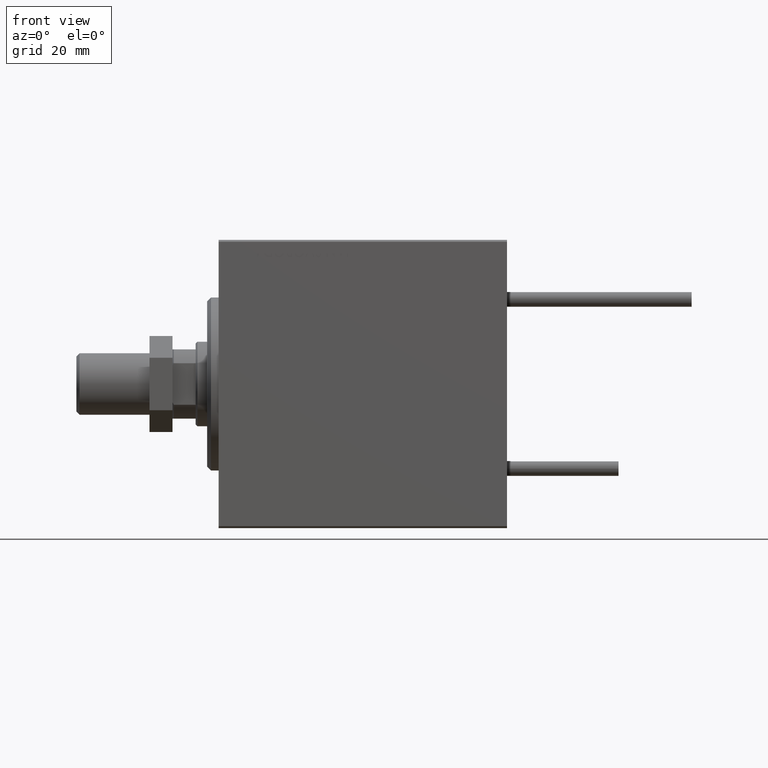
[diagram: clean part render]
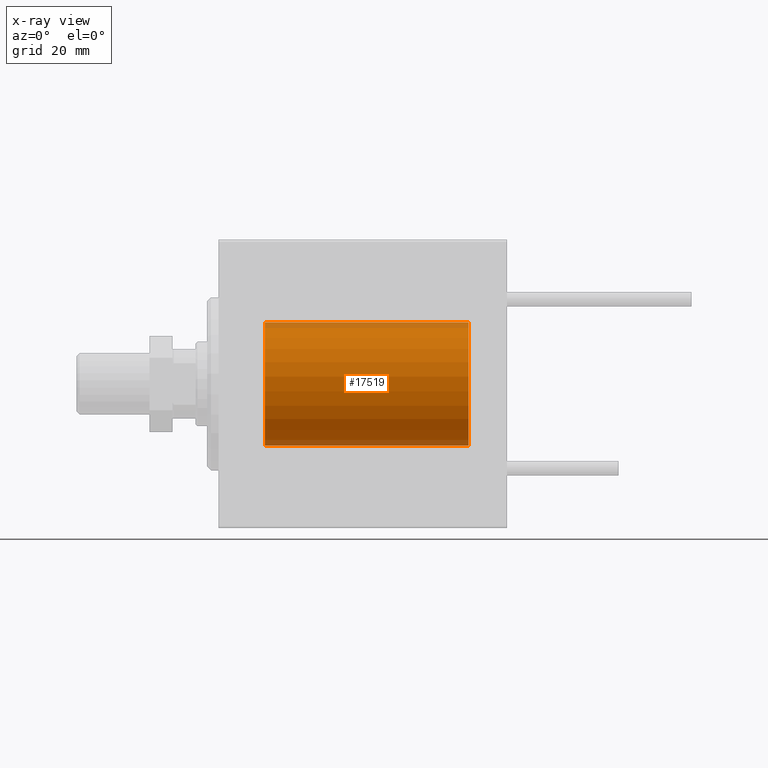
[diagram: x-ray — body ghosted, one internal face saturated and labeled with its STEP entity id]
A machine part, front view, then the same camera in x-ray: the body is ghosted and one INTERNAL B-rep face — a face not visible from any outside direction — is saturated and labeled: STEP entity #17519.
In plain terms, the highlighted cylindrical surface (partial cylindrical patch) has radius 16 mm, axis along (-1, -0, -0).
Its self-contained STEP definition (entity closure, byte-faithful):
#515 = EDGE_CURVE ( 'NONE', #43121, #8121, #29659, .T. ) ;
#1947 = CARTESIAN_POINT ( 'NONE',  ( 65.00000000000000000, 0.000000000000000000, 0.000000000000000000 ) ) ;
#3522 = ORIENTED_EDGE ( 'NONE', *, *, #13316, .F. ) ;
#3582 = DIRECTION ( 'NONE',  ( 0.000000000000000000, 0.000000000000000000, 1.000000000000000000 ) ) ;
#4227 = EDGE_LOOP ( 'NONE', ( #3522, #26378, #37737, #20904 ) ) ;
#5710 = CARTESIAN_POINT ( 'NONE',  ( 65.00000000000000000, 0.000000000000000000, 16.00000000000000000 ) ) ;
#6383 = AXIS2_PLACEMENT_3D ( 'NONE', #43451, #15821, #7742 ) ;
#7742 = DIRECTION ( 'NONE',  ( 0.000000000000000000, 0.000000000000000000, 1.000000000000000000 ) ) ;
#7778 = VERTEX_POINT ( 'NONE', #49621 ) ;
#8121 = VERTEX_POINT ( 'NONE', #30560 ) ;
#12149 = DIRECTION ( 'NONE',  ( -1.000000000000000000, -0.000000000000000000, -0.000000000000000000 ) ) ;
#13239 = LINE ( 'NONE', #5710, #49657 ) ;
#13316 = EDGE_CURVE ( 'NONE', #45283, #7778, #43636, .T. ) ;
#13865 = DIRECTION ( 'NONE',  ( -1.000000000000000000, -0.000000000000000000, -0.000000000000000000 ) ) ;
#13905 = DIRECTION ( 'NONE',  ( -1.000000000000000000, 0.000000000000000000, 0.000000000000000000 ) ) ;
#14128 = CARTESIAN_POINT ( 'NONE',  ( 65.00000000000000000, 1.959434878635765131E-15, -16.00000000000000000 ) ) ;
#15809 = CYLINDRICAL_SURFACE ( 'NONE', #42887, 16.00000000000000000 ) ;
#15821 = DIRECTION ( 'NONE',  ( -1.000000000000000000, 0.000000000000000000, 0.000000000000000000 ) ) ;
#17519 = ADVANCED_FACE ( 'NONE', ( #32229 ), #15809, .F. ) ;
#20904 = ORIENTED_EDGE ( 'NONE', *, *, #42596, .F. ) ;
#21449 = LINE ( 'NONE', #14128, #33834 ) ;
#26378 = ORIENTED_EDGE ( 'NONE', *, *, #41160, .T. ) ;
#29659 = CIRCLE ( 'NONE', #6383, 16.00000000000000000 ) ;
#30560 = CARTESIAN_POINT ( 'NONE',  ( 11.99999999999999645, 0.000000000000000000, 16.00000000000000000 ) ) ;
#30812 = CARTESIAN_POINT ( 'NONE',  ( 65.00000000000000000, 1.959434878635765131E-15, -16.00000000000000000 ) ) ;
#31442 = CARTESIAN_POINT ( 'NONE',  ( 11.99999999999999645, 1.959434878635765131E-15, -16.00000000000000000 ) ) ;
#31720 = CARTESIAN_POINT ( 'NONE',  ( 65.00000000000000000, 0.000000000000000000, 0.000000000000000000 ) ) ;
#31963 = AXIS2_PLACEMENT_3D ( 'NONE', #1947, #13905, #42052 ) ;
#32229 = FACE_OUTER_BOUND ( 'NONE', #4227, .T. ) ;
#33834 = VECTOR ( 'NONE', #13865, 1000.000000000000000 ) ;
#37737 = ORIENTED_EDGE ( 'NONE', *, *, #515, .T. ) ;
#37747 = DIRECTION ( 'NONE',  ( -1.000000000000000000, -0.000000000000000000, -0.000000000000000000 ) ) ;
#41160 = EDGE_CURVE ( 'NONE', #45283, #43121, #21449, .T. ) ;
#42052 = DIRECTION ( 'NONE',  ( 0.000000000000000000, 0.000000000000000000, 1.000000000000000000 ) ) ;
#42596 = EDGE_CURVE ( 'NONE', #7778, #8121, #13239, .T. ) ;
#42887 = AXIS2_PLACEMENT_3D ( 'NONE', #31720, #12149, #3582 ) ;
#43121 = VERTEX_POINT ( 'NONE', #31442 ) ;
#43451 = CARTESIAN_POINT ( 'NONE',  ( 11.99999999999999645, 0.000000000000000000, 0.000000000000000000 ) ) ;
#43636 = CIRCLE ( 'NONE', #31963, 16.00000000000000000 ) ;
#45283 = VERTEX_POINT ( 'NONE', #30812 ) ;
#49621 = CARTESIAN_POINT ( 'NONE',  ( 65.00000000000000000, 0.000000000000000000, 16.00000000000000000 ) ) ;
#49657 = VECTOR ( 'NONE', #37747, 1000.000000000000000 ) ;